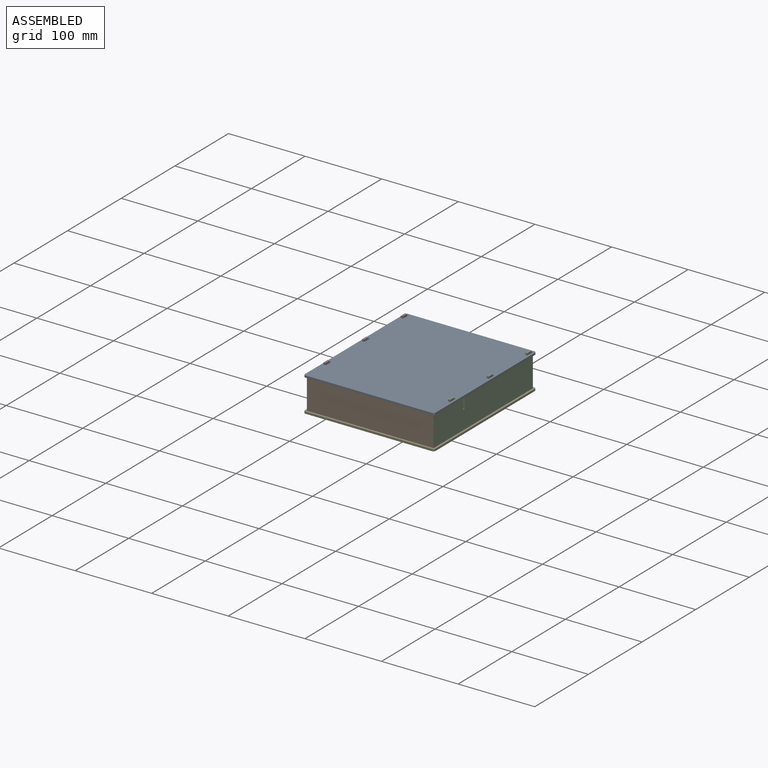
[diagram: assembled view]
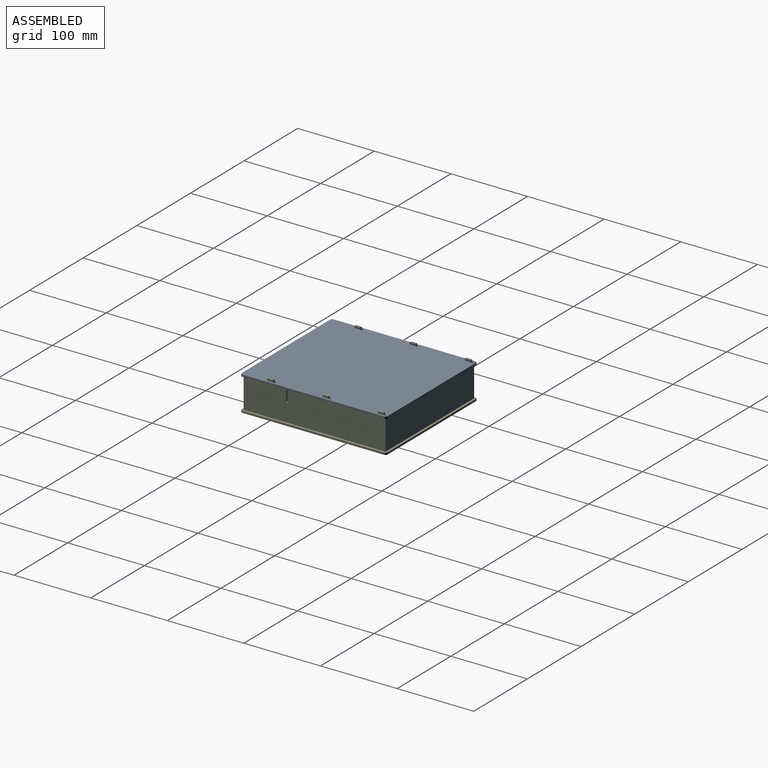
[diagram: assembled view, second angle]
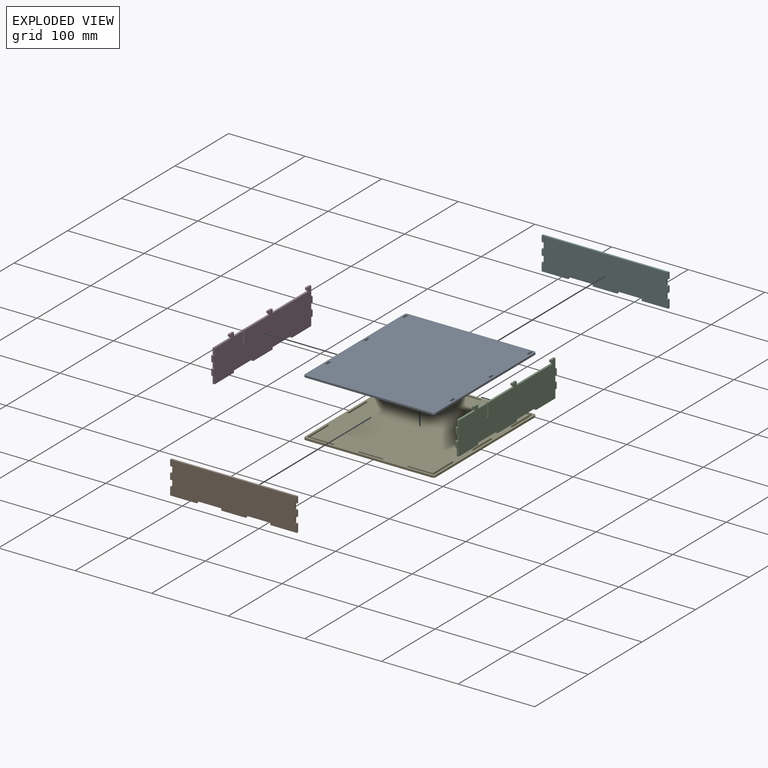
[diagram: exploded view]
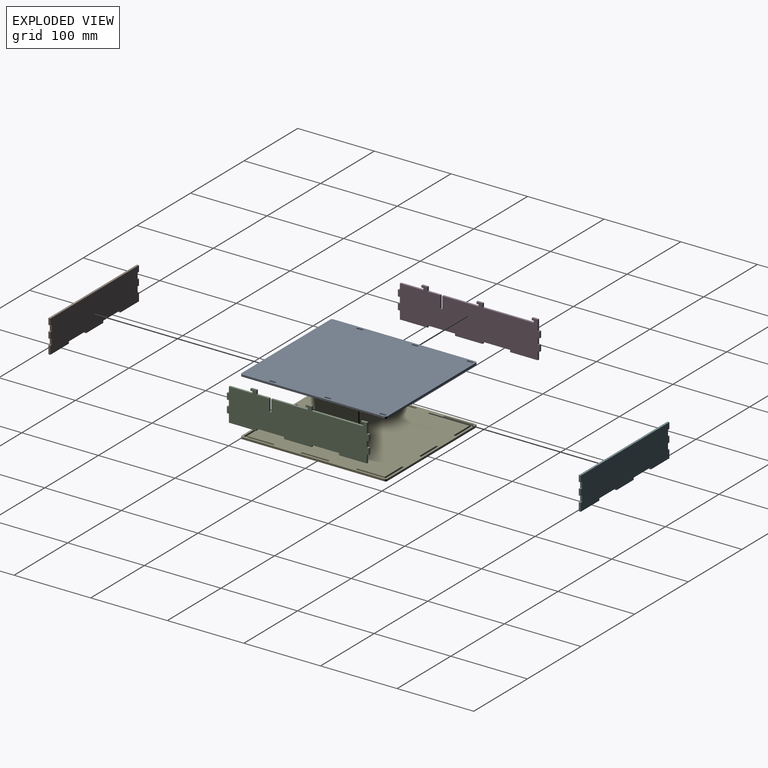
[diagram: exploded view, second angle]
ASSEMBLY  parts=6 mates=5
PART A: 34 faces, bbox 170.5x190.5x2.6 mm
  f0: plane 7.86x2.62mm, normal (-1,0,0), area 20.6mm2, adj f1,f27,f28,f29
  f1: plane 2.82x2.62mm, normal (0,1,0), area 7.4mm2, adj f0,f2,f28,f29
  f2: plane 7.86x2.62mm, normal (1,0,0), area 20.6mm2, adj f1,f27,f28,f29
  f3: plane 7.86x2.62mm, normal (-1,0,0), area 20.6mm2, adj f4,f21,f28,f29
  f4: plane 2.82x2.62mm, normal (0,1,0), area 7.4mm2, adj f3,f5,f28,f29
  f5: plane 7.86x2.62mm, normal (1,0,0), area 20.6mm2, adj f4,f21,f28,f29
  f6: plane 7.86x2.62mm, normal (1,0,0), area 20.6mm2, adj f7,f22,f28,f29
  f7: plane 2.82x2.62mm, normal (0,-1,0), area 7.4mm2, adj f6,f8,f28,f29
  f8: plane 7.86x2.62mm, normal (-1,0,0), area 20.6mm2, adj f7,f22,f28,f29
  f9: plane 185.24x2.62mm, normal (-1,0,0), area 485.3mm2, adj f28,f29,f30,f33
  f10: plane 165.24x2.62mm, normal (0,-1,0), area 432.9mm2, adj f28,f29,f30,f31
  f11: plane 185.24x2.62mm, normal (1,0,0), area 485.3mm2, adj f28,f29,f31,f32
  f12: plane 7.86x2.62mm, normal (-1,0,0), area 20.6mm2, adj f13,f24,f28,f29
  f13: plane 2.82x2.62mm, normal (0,1,0), area 7.4mm2, adj f12,f14,f28,f29
  f14: plane 7.86x2.62mm, normal (1,0,0), area 20.6mm2, adj f13,f24,f28,f29
  f15: plane 7.86x2.62mm, normal (-1,0,0), area 20.6mm2, adj f16,f25,f28,f29
  f16: plane 2.82x2.62mm, normal (0,1,0), area 7.4mm2, adj f15,f17,f28,f29
  f17: plane 7.86x2.62mm, normal (1,0,0), area 20.6mm2, adj f16,f25,f28,f29
  f18: plane 7.86x2.62mm, normal (-1,0,0), area 20.6mm2, adj f19,f26,f28,f29
  f19: plane 2.82x2.62mm, normal (0,1,0), area 7.4mm2, adj f18,f20,f28,f29
  f20: plane 7.86x2.62mm, normal (1,0,0), area 20.6mm2, adj f19,f26,f28,f29
  f21: plane 2.82x2.62mm, normal (0,-1,0), area 7.4mm2, adj f3,f5,f28,f29
  f22: plane 2.82x2.62mm, normal (0,1,0), area 7.4mm2, adj f6,f8,f28,f29
  f23: plane 165.24x2.62mm, normal (0,1,0), area 432.9mm2, adj f28,f29,f32,f33
  f24: plane 2.82x2.62mm, normal (0,-1,0), area 7.4mm2, adj f12,f14,f28,f29
  f25: plane 2.82x2.62mm, normal (0,-1,0), area 7.4mm2, adj f15,f17,f28,f29
  f26: plane 2.82x2.62mm, normal (0,-1,0), area 7.4mm2, adj f18,f20,f28,f29
  f27: plane 2.82x2.62mm, normal (0,-1,0), area 7.4mm2, adj f0,f2,f28,f29
  f28: plane 190.48x170.48mm, normal (0,0,1), area 32334.1mm2, adj f0,f1,f2,f3,f4,f5,f6,f7
  f29: plane 190.48x170.48mm, normal (0,0,-1), area 32334.1mm2, adj f0,f1,f2,f3,f4,f5,f6,f7
  f30: cylinder r=2.62mm len=2.62mm, axis (0,0,-1), area 10.8mm2, adj f9,f10,f28,f29
  f31: cylinder r=2.62mm len=2.62mm, axis (0,0,-1), area 10.8mm2, adj f10,f11,f28,f29
  f32: cylinder r=2.62mm len=2.62mm, axis (0,0,-1), area 10.8mm2, adj f11,f23,f28,f29
  f33: cylinder r=2.62mm len=2.62mm, axis (0,0,-1), area 10.8mm2, adj f9,f23,f28,f29
PART B: 30 faces, bbox 165.2x42.6x2.6 mm
  f0: plane 8x2.62mm, normal (1,0,0), area 21mm2, adj f1,f27,f28,f29
  f1: plane 2.62x2.62mm, normal (0,-1,0), area 6.9mm2, adj f0,f2,f28,f29
  f2: plane 10.62x2.62mm, normal (1,0,0), area 27.8mm2, adj f1,f3,f28,f29
  f3: plane 34.62x2.62mm, normal (0,1,0), area 90.7mm2, adj f2,f4,f28,f29
  f4: plane 2.62x2.62mm, normal (-1,0,0), area 6.9mm2, adj f3,f5,f28,f29
  f5: plane 32x2.62mm, normal (0,1,0), area 83.8mm2, adj f4,f6,f28,f29
  f6: plane 2.62x2.62mm, normal (1,0,0), area 6.9mm2, adj f5,f7,f28,f29
  f7: plane 32x2.62mm, normal (0,1,0), area 83.8mm2, adj f6,f8,f28,f29
  f8: plane 2.62x2.62mm, normal (-1,0,0), area 6.9mm2, adj f7,f9,f28,f29
  f9: plane 32x2.62mm, normal (0,1,0), area 83.8mm2, adj f8,f10,f28,f29
  f10: plane 2.62x2.62mm, normal (1,0,0), area 6.9mm2, adj f9,f11,f28,f29
  f11: plane 34.62x2.62mm, normal (0,1,0), area 90.7mm2, adj f10,f12,f28,f29
  f12: plane 10.62x2.62mm, normal (-1,0,0), area 27.8mm2, adj f11,f13,f28,f29
  f13: plane 2.62x2.62mm, normal (0,-1,0), area 6.9mm2, adj f12,f14,f28,f29
  f14: plane 8x2.62mm, normal (-1,0,0), area 21mm2, adj f13,f15,f28,f29
  f15: plane 2.62x2.62mm, normal (0,1,0), area 6.9mm2, adj f14,f16,f28,f29
  f16: plane 8x2.62mm, normal (-1,0,0), area 21mm2, adj f15,f17,f28,f29
  f17: plane 2.62x2.62mm, normal (0,-1,0), area 6.9mm2, adj f16,f18,f28,f29
  f18: plane 8x2.62mm, normal (-1,0,0), area 21mm2, adj f17,f19,f28,f29
  f19: plane 2.62x2.62mm, normal (0,1,0), area 6.9mm2, adj f18,f20,f28,f29
  f20: plane 8x2.62mm, normal (-1,0,0), area 21mm2, adj f19,f21,f28,f29
  f21: plane 165.24x2.62mm, normal (0,-1,0), area 432.9mm2, adj f20,f22,f28,f29
  f22: plane 8x2.62mm, normal (1,0,0), area 21mm2, adj f21,f23,f28,f29
  f23: plane 2.62x2.62mm, normal (0,1,0), area 6.9mm2, adj f22,f24,f28,f29
  f24: plane 8x2.62mm, normal (1,0,0), area 21mm2, adj f23,f25,f28,f29
  f25: plane 2.62x2.62mm, normal (0,-1,0), area 6.9mm2, adj f24,f26,f28,f29
  f26: plane 8x2.62mm, normal (1,0,0), area 21mm2, adj f25,f27,f28,f29
  f27: plane 2.62x2.62mm, normal (0,1,0), area 6.9mm2, adj f0,f26,f28,f29
  f28: plane 165.24x42.62mm, normal (0,0,1), area 6791mm2, adj f0,f1,f2,f3,f4,f5,f6,f7
  f29: plane 165.24x42.62mm, normal (0,0,-1), area 6791mm2, adj f0,f1,f2,f3,f4,f5,f6,f7
PART C: 50 faces, bbox 47.9x185.2x2.6 mm
  f0: plane 16.69x2.62mm, normal (1,0,0), area 43.7mm2, adj f1,f47,f48,f49
  f1: plane 5.24x2.62mm, normal (0,-1,0), area 13.7mm2, adj f0,f2,f48,f49
  f2: plane 7.86x2.62mm, normal (1,0,0), area 20.6mm2, adj f1,f3,f48,f49
  f3: plane 2.62x2.62mm, normal (0,1,0), area 6.9mm2, adj f2,f4,f48,f49
  f4: plane 2.62x2.62mm, normal (-1,0,0), area 6.9mm2, adj f3,f5,f48,f49
  f5: plane 2.62x2.62mm, normal (0,1,0), area 6.9mm2, adj f4,f6,f48,f49
  f6: plane 30.76x2.62mm, normal (1,0,0), area 80.6mm2, adj f5,f7,f48,f49
  f7: plane 8x2.62mm, normal (0,1,0), area 21mm2, adj f6,f8,f48,f49
  f8: plane 2.62x2.62mm, normal (1,0,0), area 6.9mm2, adj f7,f9,f48,f49
  f9: plane 8x2.62mm, normal (0,1,0), area 21mm2, adj f8,f10,f48,f49
  f10: plane 2.62x2.62mm, normal (-1,0,0), area 6.9mm2, adj f9,f11,f48,f49
  f11: plane 8x2.62mm, normal (0,1,0), area 21mm2, adj f10,f12,f48,f49
  f12: plane 2.62x2.62mm, normal (1,0,0), area 6.9mm2, adj f11,f13,f48,f49
  f13: plane 8x2.62mm, normal (0,1,0), area 21mm2, adj f12,f14,f48,f49
  f14: plane 2.62x2.62mm, normal (-1,0,0), area 6.9mm2, adj f13,f15,f48,f49
  f15: plane 10.62x2.62mm, normal (0,1,0), area 27.8mm2, adj f14,f16,f48,f49
  f16: plane 36x2.62mm, normal (-1,0,0), area 94.3mm2, adj f15,f17,f48,f49
  f17: plane 2.62x2.62mm, normal (0,-1,0), area 6.9mm2, adj f16,f18,f48,f49
  f18: plane 36x2.62mm, normal (-1,0,0), area 94.3mm2, adj f17,f19,f48,f49
  f19: plane 2.62x2.62mm, normal (0,1,0), area 6.9mm2, adj f18,f20,f48,f49
  f20: plane 36x2.62mm, normal (-1,0,0), area 94.3mm2, adj f19,f21,f48,f49
  f21: plane 2.62x2.62mm, normal (0,-1,0), area 6.9mm2, adj f20,f22,f48,f49
  f22: plane 36x2.62mm, normal (-1,0,0), area 94.3mm2, adj f21,f23,f48,f49
  f23: plane 2.62x2.62mm, normal (0,1,0), area 6.9mm2, adj f22,f24,f48,f49
  f24: plane 36x2.62mm, normal (-1,0,0), area 94.3mm2, adj f23,f25,f48,f49
  f25: plane 10.62x2.62mm, normal (0,-1,0), area 27.8mm2, adj f24,f26,f48,f49
  f26: plane 2.62x2.62mm, normal (-1,0,0), area 6.9mm2, adj f25,f27,f48,f49
  f27: plane 8x2.62mm, normal (0,-1,0), area 21mm2, adj f26,f28,f48,f49
  f28: plane 2.62x2.62mm, normal (1,0,0), area 6.9mm2, adj f27,f29,f48,f49
  f29: plane 8x2.62mm, normal (0,-1,0), area 21mm2, adj f28,f30,f48,f49
  f30: plane 2.62x2.62mm, normal (-1,0,0), area 6.9mm2, adj f29,f31,f48,f49
  f31: plane 8x2.62mm, normal (0,-1,0), area 21mm2, adj f30,f32,f48,f49
  f32: plane 2.62x2.62mm, normal (1,0,0), area 6.9mm2, adj f31,f33,f48,f49
  f33: plane 13.24x2.62mm, normal (0,-1,0), area 34.7mm2, adj f32,f34,f48,f49
  f34: plane 7.86x2.62mm, normal (1,0,0), area 20.6mm2, adj f33,f35,f48,f49
  f35: plane 2.62x2.62mm, normal (0,1,0), area 6.9mm2, adj f34,f36,f48,f49
  f36: plane 2.62x2.62mm, normal (-1,0,0), area 6.9mm2, adj f35,f37,f48,f49
  f37: plane 2.62x2.62mm, normal (0,1,0), area 6.9mm2, adj f36,f38,f48,f49
  f38: plane 66.76x2.62mm, normal (1,0,0), area 174.9mm2, adj f37,f39,f48,f49
  f39: plane 5.24x2.62mm, normal (0,-1,0), area 13.7mm2, adj f38,f40,f48,f49
  f40: plane 7.86x2.62mm, normal (1,0,0), area 20.6mm2, adj f39,f41,f48,f49
  f41: plane 2.62x2.62mm, normal (0,1,0), area 6.9mm2, adj f40,f42,f48,f49
  f42: plane 2.62x2.62mm, normal (-1,0,0), area 6.9mm2, adj f41,f43,f48,f49
  f43: plane 2.62x2.62mm, normal (0,1,0), area 6.9mm2, adj f42,f44,f48,f49
  f44: plane 47.45x2.62mm, normal (1,0,0), area 124.3mm2, adj f43,f45,f48,f49
  f45: plane 16x2.62mm, normal (0,1,0), area 41.9mm2, adj f44,f46,f48,f49
  f46: plane 2.62x2.62mm, normal (1,0,0), area 6.9mm2, adj f45,f47,f48,f49
  f47: plane 16x2.62mm, normal (0,-1,0), area 41.9mm2, adj f0,f46,f48,f49
  f48: plane 185.24x47.86mm, normal (0,0,1), area 7627.8mm2, adj f0,f1,f2,f3,f4,f5,f6,f7
  f49: plane 185.24x47.86mm, normal (0,0,-1), area 7627.8mm2, adj f0,f1,f2,f3,f4,f5,f6,f7
PART D: same geometry as C
PART E: 50 faces, bbox 170.5x190.5x2.6 mm
  f0: plane 185.24x2.62mm, normal (1,0,0), area 485.3mm2, adj f44,f45,f46,f49
  f1: plane 165.24x2.62mm, normal (0,1,0), area 432.9mm2, adj f44,f45,f46,f47
  f2: plane 185.24x2.62mm, normal (-1,0,0), area 485.3mm2, adj f44,f45,f47,f48
  f3: plane 36x2.62mm, normal (1,0,0), area 94.3mm2, adj f4,f35,f44,f45
  f4: plane 2.62x2.62mm, normal (0,-1,0), area 6.9mm2, adj f3,f5,f44,f45
  f5: plane 36x2.62mm, normal (-1,0,0), area 94.3mm2, adj f4,f35,f44,f45
  f6: plane 34.62x2.62mm, normal (0,-1,0), area 90.7mm2, adj f7,f36,f44,f45
  f7: plane 2.62x2.62mm, normal (-1,0,0), area 6.9mm2, adj f6,f8,f44,f45
  f8: plane 32x2.62mm, normal (0,1,0), area 83.8mm2, adj f7,f9,f44,f45
  f9: plane 36x2.62mm, normal (-1,0,0), area 94.3mm2, adj f8,f10,f44,f45
  f10: plane 2.62x2.62mm, normal (0,1,0), area 6.9mm2, adj f9,f36,f44,f45
  f11: plane 32x2.62mm, normal (0,-1,0), area 83.8mm2, adj f12,f37,f44,f45
  f12: plane 2.62x2.62mm, normal (-1,0,0), area 6.9mm2, adj f11,f13,f44,f45
  f13: plane 32x2.62mm, normal (0,1,0), area 83.8mm2, adj f12,f37,f44,f45
  f14: plane 2.62x2.62mm, normal (0,1,0), area 6.9mm2, adj f15,f38,f44,f45
  f15: plane 36x2.62mm, normal (1,0,0), area 94.3mm2, adj f14,f16,f44,f45
  f16: plane 32x2.62mm, normal (0,1,0), area 83.8mm2, adj f15,f17,f44,f45
  f17: plane 2.62x2.62mm, normal (1,0,0), area 6.9mm2, adj f16,f18,f44,f45
  f18: plane 34.62x2.62mm, normal (0,-1,0), area 90.7mm2, adj f17,f38,f44,f45
  f19: plane 2.62x2.62mm, normal (0,1,0), area 6.9mm2, adj f20,f39,f44,f45
  f20: plane 36x2.62mm, normal (1,0,0), area 94.3mm2, adj f19,f21,f44,f45
  f21: plane 2.62x2.62mm, normal (0,-1,0), area 6.9mm2, adj f20,f39,f44,f45
  f22: plane 2.62x2.62mm, normal (1,0,0), area 6.9mm2, adj f23,f40,f44,f45
  f23: plane 32x2.62mm, normal (0,-1,0), area 83.8mm2, adj f22,f24,f44,f45
  f24: plane 36x2.62mm, normal (1,0,0), area 94.3mm2, adj f23,f25,f44,f45
  f25: plane 2.62x2.62mm, normal (0,-1,0), area 6.9mm2, adj f24,f26,f44,f45
  f26: plane 38.62x2.62mm, normal (-1,0,0), area 101.2mm2, adj f25,f40,f44,f45
  f27: plane 32x2.62mm, normal (0,1,0), area 83.8mm2, adj f28,f41,f44,f45
  f28: plane 2.62x2.62mm, normal (1,0,0), area 6.9mm2, adj f27,f29,f44,f45
  f29: plane 32x2.62mm, normal (0,-1,0), area 83.8mm2, adj f28,f41,f44,f45
  f30: plane 2.62x2.62mm, normal (-1,0,0), area 6.9mm2, adj f31,f42,f44,f45
  f31: plane 34.62x2.62mm, normal (0,1,0), area 90.7mm2, adj f30,f32,f44,f45
  f32: plane 38.62x2.62mm, normal (1,0,0), area 101.2mm2, adj f31,f33,f44,f45
  f33: plane 2.62x2.62mm, normal (0,-1,0), area 6.9mm2, adj f32,f34,f44,f45
  f34: plane 36x2.62mm, normal (-1,0,0), area 94.3mm2, adj f33,f42,f44,f45
  f35: plane 2.62x2.62mm, normal (0,1,0), area 6.9mm2, adj f3,f5,f44,f45
  f36: plane 38.62x2.62mm, normal (1,0,0), area 101.2mm2, adj f6,f10,f44,f45
  f37: plane 2.62x2.62mm, normal (1,0,0), area 6.9mm2, adj f11,f13,f44,f45
  f38: plane 38.62x2.62mm, normal (-1,0,0), area 101.2mm2, adj f14,f18,f44,f45
  f39: plane 36x2.62mm, normal (-1,0,0), area 94.3mm2, adj f19,f21,f44,f45
  f40: plane 34.62x2.62mm, normal (0,1,0), area 90.7mm2, adj f22,f26,f44,f45
  f41: plane 2.62x2.62mm, normal (-1,0,0), area 6.9mm2, adj f27,f29,f44,f45
  f42: plane 32x2.62mm, normal (0,-1,0), area 83.8mm2, adj f30,f34,f44,f45
  f43: plane 165.24x2.62mm, normal (0,-1,0), area 432.9mm2, adj f44,f45,f48,f49
  f44: plane 190.48x170.48mm, normal (0,0,1), area 31370.7mm2, adj f0,f1,f2,f3,f4,f5,f6,f7
  f45: plane 190.48x170.48mm, normal (0,0,-1), area 31370.7mm2, adj f0,f1,f2,f3,f4,f5,f6,f7
  f46: cylinder r=2.62mm len=2.62mm, axis (0,0,-1), area 10.8mm2, adj f0,f1,f44,f45
  f47: cylinder r=2.62mm len=2.62mm, axis (0,0,-1), area 10.8mm2, adj f1,f2,f44,f45
  f48: cylinder r=2.62mm len=2.62mm, axis (0,0,-1), area 10.8mm2, adj f2,f43,f44,f45
  f49: cylinder r=2.62mm len=2.62mm, axis (0,0,-1), area 10.8mm2, adj f0,f43,f44,f45
PART F: same geometry as B
PLACE A rot(axis=(0,0,1),180deg) t=(-115.14,90,40)mm
PLACE B rot(axis=(-1,0,0),90deg) t=(-80,-92.62,-30)mm
PLACE C rot(axis=(0.71,0,0.71),180deg) t=(80,90,-190)mm
PLACE D rot(axis=(0.71,0,0.71),180deg) t=(-82.62,90,-190)mm
PLACE E t=(-80,-90,-2.62)mm
PLACE F rot(axis=(0,0.71,-0.71),180deg) t=(80,92.62,-30)mm
MATE fastened D.f48 <-> E.f5  axis (1,0,0) through (-80,0,-2.62)mm
MATE fastened C.f49 <-> E.f20  axis (-1,0,0) through (80,0,-2.62)mm
MATE fastened F.f28 <-> E.f13  axis (0,-1,0) through (0,90,-2.62)mm
MATE fastened A.f7 <-> C.f43  axis (0,1,0) through (81.31,12.76,40)mm
MATE fastened B.f28 <-> E.f29  axis (0,1,0) through (0,-90,-2.62)mm
